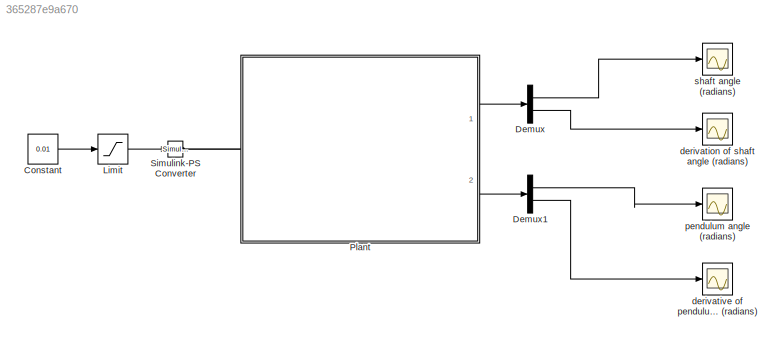
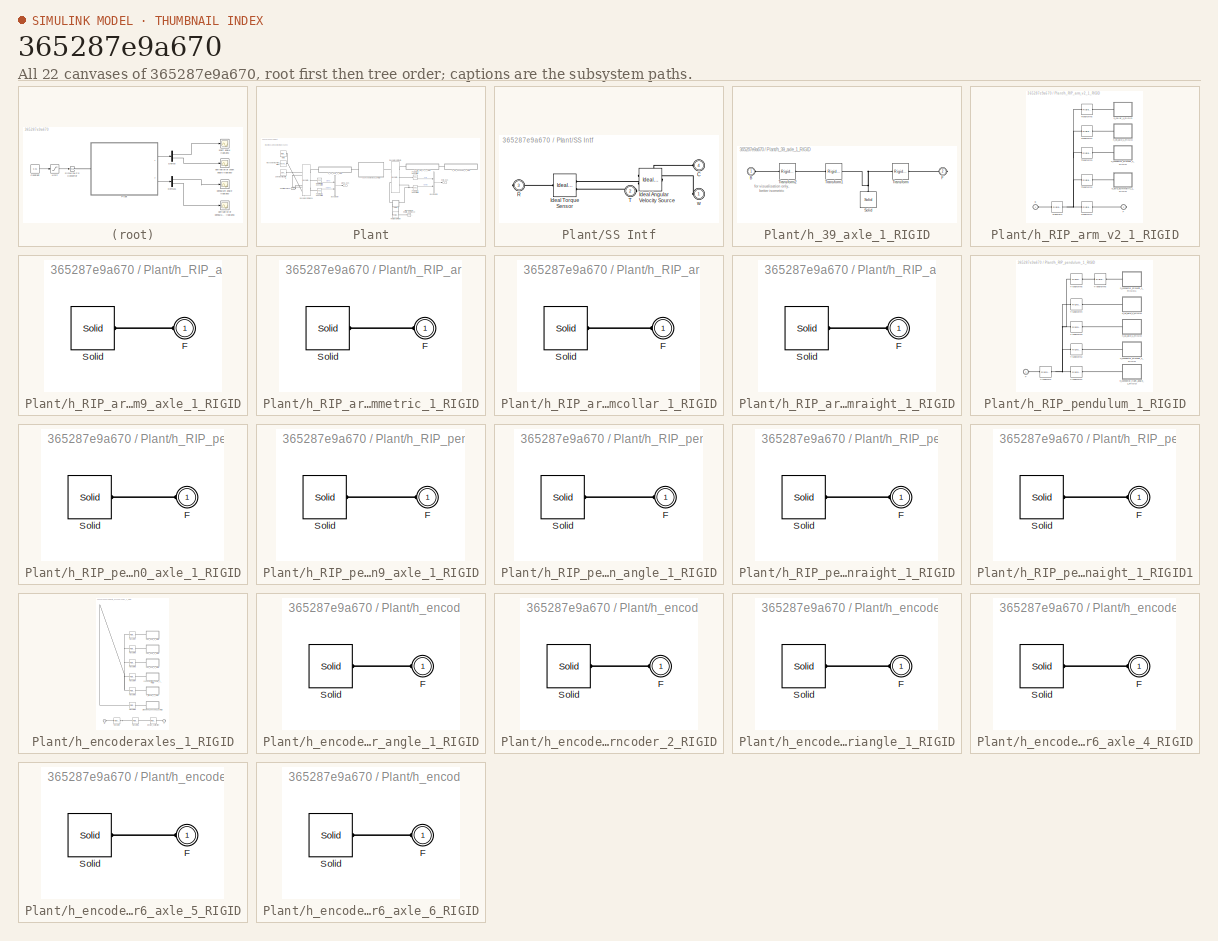
[diagram: thumbnail index - all 22 canvases of the model, root first then tree order]
MODEL slx_365287e9a670
KIND model
CONFIG AbsTol = auto
CONFIG EnableMultiTasking = off
CONFIG FixedStep = auto
CONFIG MaxStep = auto
CONFIG MinStep = auto
CONFIG RelTol = 1e-3
CONFIG SampleTimeConstraint = Unconstrained
CONFIG Solver = VariableStepAuto
CONFIG SolverName = VariableStepAuto
CONFIG StartTime = 0.0
CONFIG StopTime = 10.0
BLOCK [Constant] Constant
  Value = 0.01
BLOCK [Demux] Demux
  Outputs = 2
  Ports = [1, 2]
BLOCK [Demux] Demux1
  Outputs = 2
  Ports = [1, 2]
BLOCK [Saturate] Limit
  LowerLimit = -0.1e3
  UpperLimit = 0.1e3
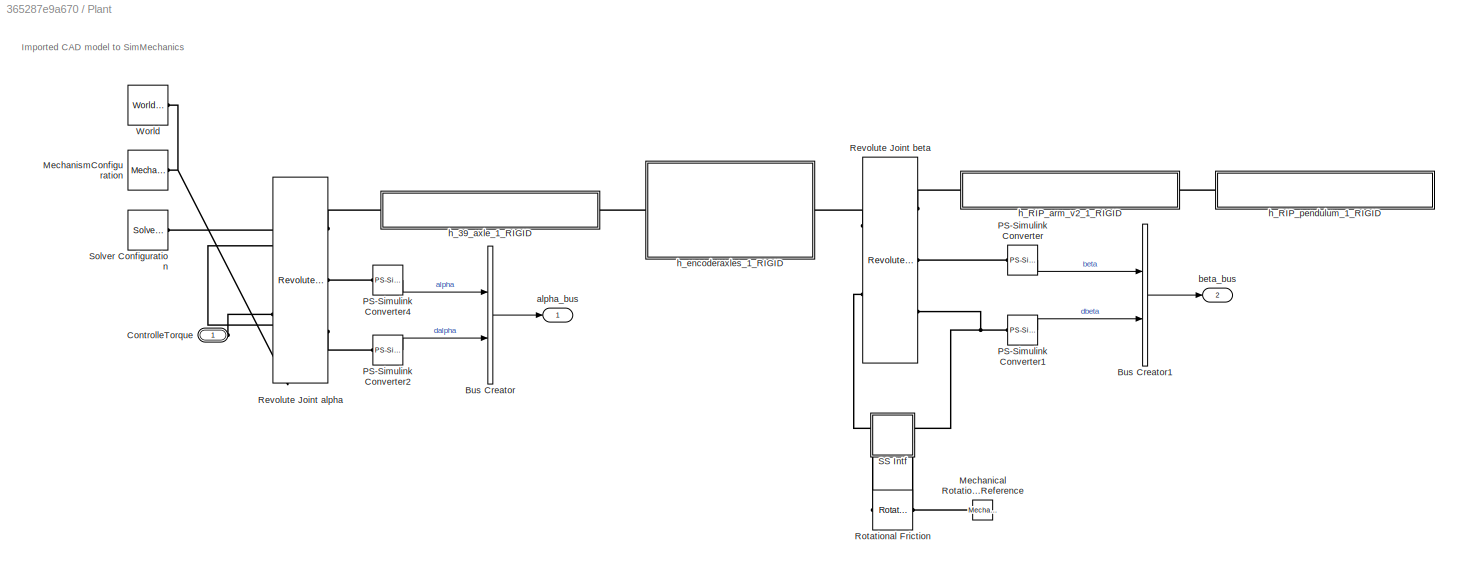
BLOCK [SubSystem] Plant
  Ports = [0, 2, 0, 0, 0, 1]
  RequestExecContextInheritance = off
BLOCK [BusCreator] Plant/Bus Creator
  DisplayOption = bar
  InheritFromInputs = on
  Inputs = 2
  Ports = [2, 1]
BLOCK [BusCreator] Plant/Bus Creator1
  DisplayOption = bar
  InheritFromInputs = on
  Inputs = 2
  Ports = [2, 1]
BLOCK [PMIOPort] Plant/ControlleTorque
  Side = Left
BLOCK [Reference] Plant/Mechanical Rotational Reference  REF=fl_lib/Mechanical/Rotational Elements/Mechanical
Rotational Reference
  Ports = [0, 0, 0, 0, 0, 1]
  SourceBlock = fl_lib/Mechanical/Rotational Elements/Mechanical\nRotational Reference
  SourceProductBaseCode = SS
  SourceType = Mechanical\nRotational Reference
BLOCK [Reference] Plant/MechanismConfiguration  REF=sm_lib/Utilities/Mechanism
Configuration
  Ports = [0, 0, 0, 0, 0, 0, 1]
  SourceBlock = sm_lib/Utilities/Mechanism\nConfiguration
  SourceProductBaseCode = MS
  SourceType = Mechanism\nConfiguration
BLOCK [Reference] Plant/PS-Simulink Converter  REF=nesl_utility/PS-Simulink
Converter
  Ports = [0, 1, 0, 0, 0, 1]
  SourceBlock = nesl_utility/PS-Simulink\nConverter
  SourceProductBaseCode = SS
  SourceType = PS-Simulink\nConverter
BLOCK [Reference] Plant/PS-Simulink Converter1  REF=nesl_utility/PS-Simulink
Converter
  Ports = [0, 1, 0, 0, 0, 1]
  SourceBlock = nesl_utility/PS-Simulink\nConverter
  SourceProductBaseCode = SS
  SourceType = PS-Simulink\nConverter
BLOCK [Reference] Plant/PS-Simulink Converter2  REF=nesl_utility/PS-Simulink
Converter
  Ports = [0, 1, 0, 0, 0, 1]
  SourceBlock = nesl_utility/PS-Simulink\nConverter
  SourceProductBaseCode = SS
  SourceType = PS-Simulink\nConverter
BLOCK [Reference] Plant/PS-Simulink Converter4  REF=nesl_utility/PS-Simulink
Converter
  Ports = [0, 1, 0, 0, 0, 1]
  SourceBlock = nesl_utility/PS-Simulink\nConverter
  SourceProductBaseCode = SS
  SourceType = PS-Simulink\nConverter
BLOCK [Reference] Plant/Revolute Joint alpha  REF=sm_lib/Joints/Revolute Joint
  Ports = [0, 0, 0, 0, 0, 2, 3]
  SourceBlock = sm_lib/Joints/Revolute Joint
  SourceProductBaseCode = MS
  SourceType = Revolute Joint
BLOCK [Reference] Plant/Revolute Joint beta  REF=sm_lib/Joints/Revolute Joint
  Ports = [0, 0, 0, 0, 0, 2, 3]
  SourceBlock = sm_lib/Joints/Revolute Joint
  SourceProductBaseCode = MS
  SourceType = Revolute Joint
BLOCK [Reference] Plant/Rotational Friction  REF=fl_lib/Mechanical/Rotational Elements/Rotational Friction
  Ports = [0, 0, 0, 0, 0, 1, 1]
  SourceBlock = fl_lib/Mechanical/Rotational Elements/Rotational Friction
  SourceProductBaseCode = SS
  SourceType = Rotational Friction
BLOCK [SubSystem] Plant/SS Intf
  Ports = [0, 0, 0, 0, 0, 2, 2]
  RequestExecContextInheritance = off
BLOCK [PMIOPort] Plant/SS Intf/C
  Port = 4
  Side = Left
BLOCK [Reference] Plant/SS Intf/Ideal Angular Velocity Source  REF=fl_lib/Mechanical/Mechanical Sources/Ideal Angular
Velocity Source
  Ports = [0, 0, 0, 0, 0, 1, 2]
  SourceBlock = fl_lib/Mechanical/Mechanical Sources/Ideal Angular\nVelocity Source
  SourceProductBaseCode = SS
  SourceType = Ideal Angular\nVelocity Source
BLOCK [Reference] Plant/SS Intf/Ideal Torque Sensor  REF=fl_lib/Mechanical/Mechanical Sensors/Ideal Torque Sensor
  Ports = [0, 0, 0, 0, 0, 1, 2]
  SourceBlock = fl_lib/Mechanical/Mechanical Sensors/Ideal Torque Sensor
  SourceProductBaseCode = SS
  SourceType = Ideal Torque Sensor
BLOCK [PMIOPort] Plant/SS Intf/R
  Port = 3
  Side = Right
BLOCK [PMIOPort] Plant/SS Intf/T
  Port = 2
  Side = Right
BLOCK [PMIOPort] Plant/SS Intf/w
  Side = Left
BLOCK [Reference] Plant/Solver Configuration  REF=nesl_utility/Solver
Configuration
  Ports = [0, 0, 0, 0, 0, 0, 1]
  SourceBlock = nesl_utility/Solver\nConfiguration
  SourceProductBaseCode = SS
  SourceType = Solver\nConfiguration
BLOCK [Reference] Plant/World  REF=sm_lib/Frames and
Transforms/World Frame
  Ports = [0, 0, 0, 0, 0, 0, 1]
  SourceBlock = sm_lib/Frames and\nTransforms/World Frame
  SourceProductBaseCode = MS
  SourceType = World Frame
BLOCK [Outport] Plant/alpha_bus
BLOCK [Outport] Plant/beta_bus
  Port = 2
BLOCK [SubSystem] Plant/h_39_axle_1_RIGID
  Ports = [0, 0, 0, 0, 0, 1, 1]
  RequestExecContextInheritance = off
BLOCK [PMIOPort] Plant/h_39_axle_1_RIGID/B
  Side = Left
BLOCK [PMIOPort] Plant/h_39_axle_1_RIGID/F
  Port = 2
  Side = Right
BLOCK [Reference] Plant/h_39_axle_1_RIGID/Solid  REF=sm_lib/Body Elements/Solid
  Ports = [0, 0, 0, 0, 0, 0, 1]
  SourceBlock = sm_lib/Body Elements/Solid
  SourceProductBaseCode = MS
  SourceType = File Solid
BLOCK [Reference] Plant/h_39_axle_1_RIGID/Transform  REF=sm_lib/Frames and
Transforms/Rigid
Transform
  Ports = [0, 0, 0, 0, 0, 1, 1]
  SourceBlock = sm_lib/Frames and\nTransforms/Rigid\nTransform
  SourceProductBaseCode = MS
  SourceType = Rigid\nTransform
BLOCK [Reference] Plant/h_39_axle_1_RIGID/Transform1  REF=sm_lib/Frames and
Transforms/Rigid
Transform
  Ports = [0, 0, 0, 0, 0, 1, 1]
  SourceBlock = sm_lib/Frames and\nTransforms/Rigid\nTransform
  SourceProductBaseCode = MS
  SourceType = Rigid\nTransform
BLOCK [Reference] Plant/h_39_axle_1_RIGID/Transform2  REF=sm_lib/Frames and
Transforms/Rigid
Transform
  Ports = [0, 0, 0, 0, 0, 1, 1]
  SourceBlock = sm_lib/Frames and\nTransforms/Rigid\nTransform
  SourceProductBaseCode = MS
  SourceType = Rigid\nTransform
BLOCK [SubSystem] Plant/h_RIP_arm_v2_1_RIGID
  Ports = [0, 0, 0, 0, 0, 1, 1]
  RequestExecContextInheritance = off
BLOCK [PMIOPort] Plant/h_RIP_arm_v2_1_RIGID/B
  Side = Left
BLOCK [PMIOPort] Plant/h_RIP_arm_v2_1_RIGID/F
  Port = 2
  Side = Right
BLOCK [Reference] Plant/h_RIP_arm_v2_1_RIGID/Transform  REF=sm_lib/Frames and
Transforms/Rigid
Transform
  Ports = [0, 0, 0, 0, 0, 1, 1]
  SourceBlock = sm_lib/Frames and\nTransforms/Rigid\nTransform
  SourceProductBaseCode = MS
  SourceType = Rigid\nTransform
BLOCK [Reference] Plant/h_RIP_arm_v2_1_RIGID/Transform1  REF=sm_lib/Frames and
Transforms/Rigid
Transform
  Ports = [0, 0, 0, 0, 0, 1, 1]
  SourceBlock = sm_lib/Frames and\nTransforms/Rigid\nTransform
  SourceProductBaseCode = MS
  SourceType = Rigid\nTransform
BLOCK [Reference] Plant/h_RIP_arm_v2_1_RIGID/Transform2  REF=sm_lib/Frames and
Transforms/Rigid
Transform
  Ports = [0, 0, 0, 0, 0, 1, 1]
  SourceBlock = sm_lib/Frames and\nTransforms/Rigid\nTransform
  SourceProductBaseCode = MS
  SourceType = Rigid\nTransform
BLOCK [Reference] Plant/h_RIP_arm_v2_1_RIGID/Transform3  REF=sm_lib/Frames and
Transforms/Rigid
Transform
  Ports = [0, 0, 0, 0, 0, 1, 1]
  SourceBlock = sm_lib/Frames and\nTransforms/Rigid\nTransform
  SourceProductBaseCode = MS
  SourceType = Rigid\nTransform
BLOCK [Reference] Plant/h_RIP_arm_v2_1_RIGID/Transform4  REF=sm_lib/Frames and
Transforms/Rigid
Transform
  Ports = [0, 0, 0, 0, 0, 1, 1]
  SourceBlock = sm_lib/Frames and\nTransforms/Rigid\nTransform
  SourceProductBaseCode = MS
  SourceType = Rigid\nTransform
BLOCK [Reference] Plant/h_RIP_arm_v2_1_RIGID/Transform5  REF=sm_lib/Frames and
Transforms/Rigid
Transform
  Ports = [0, 0, 0, 0, 0, 1, 1]
  SourceBlock = sm_lib/Frames and\nTransforms/Rigid\nTransform
  SourceProductBaseCode = MS
  SourceType = Rigid\nTransform
BLOCK [SubSystem] Plant/h_RIP_arm_v2_1_RIGID/h_39_axle_1_RIGID
  Ports = [0, 0, 0, 0, 0, 1]
  RequestExecContextInheritance = off
BLOCK [PMIOPort] Plant/h_RIP_arm_v2_1_RIGID/h_39_axle_1_RIGID/F
  Side = Left
BLOCK [Reference] Plant/h_RIP_arm_v2_1_RIGID/h_39_axle_1_RIGID/Solid  REF=sm_lib/Body Elements/Solid
  Ports = [0, 0, 0, 0, 0, 0, 1]
  SourceBlock = sm_lib/Body Elements/Solid
  SourceProductBaseCode = MS
  SourceType = File Solid
BLOCK [SubSystem] Plant/h_RIP_arm_v2_1_RIGID/h_axle_asymmetric_1_RIGID
  Ports = [0, 0, 0, 0, 0, 1]
  RequestExecContextInheritance = off
BLOCK [PMIOPort] Plant/h_RIP_arm_v2_1_RIGID/h_axle_asymmetric_1_RIGID/F
  Side = Left
BLOCK [Reference] Plant/h_RIP_arm_v2_1_RIGID/h_axle_asymmetric_1_RIGID/Solid  REF=sm_lib/Body Elements/Solid
  Ports = [0, 0, 0, 0, 0, 0, 1]
  SourceBlock = sm_lib/Body Elements/Solid
  SourceProductBaseCode = MS
  SourceType = File Solid
BLOCK [SubSystem] Plant/h_RIP_arm_v2_1_RIGID/h_collar_1_RIGID
  Ports = [0, 0, 0, 0, 0, 1]
  RequestExecContextInheritance = off
BLOCK [PMIOPort] Plant/h_RIP_arm_v2_1_RIGID/h_collar_1_RIGID/F
  Side = Left
BLOCK [Reference] Plant/h_RIP_arm_v2_1_RIGID/h_collar_1_RIGID/Solid  REF=sm_lib/Body Elements/Solid
  Ports = [0, 0, 0, 0, 0, 0, 1]
  SourceBlock = sm_lib/Body Elements/Solid
  SourceProductBaseCode = MS
  SourceType = File Solid
BLOCK [SubSystem] Plant/h_RIP_arm_v2_1_RIGID/h_connector_straight_1_RIGID
  Ports = [0, 0, 0, 0, 0, 1]
  RequestExecContextInheritance = off
BLOCK [PMIOPort] Plant/h_RIP_arm_v2_1_RIGID/h_connector_straight_1_RIGID/F
  Side = Left
BLOCK [Reference] Plant/h_RIP_arm_v2_1_RIGID/h_connector_straight_1_RIGID/Solid  REF=sm_lib/Body Elements/Solid
  Ports = [0, 0, 0, 0, 0, 0, 1]
  SourceBlock = sm_lib/Body Elements/Solid
  SourceProductBaseCode = MS
  SourceType = File Solid
BLOCK [SubSystem] Plant/h_RIP_pendulum_1_RIGID
  Ports = [0, 0, 0, 0, 0, 1]
  RequestExecContextInheritance = off
BLOCK [PMIOPort] Plant/h_RIP_pendulum_1_RIGID/F
  Side = Left
BLOCK [Reference] Plant/h_RIP_pendulum_1_RIGID/Transform  REF=sm_lib/Frames and
Transforms/Rigid
Transform
  Ports = [0, 0, 0, 0, 0, 1, 1]
  SourceBlock = sm_lib/Frames and\nTransforms/Rigid\nTransform
  SourceProductBaseCode = MS
  SourceType = Rigid\nTransform
BLOCK [Reference] Plant/h_RIP_pendulum_1_RIGID/Transform1  REF=sm_lib/Frames and
Transforms/Rigid
Transform
  Ports = [0, 0, 0, 0, 0, 1, 1]
  SourceBlock = sm_lib/Frames and\nTransforms/Rigid\nTransform
  SourceProductBaseCode = MS
  SourceType = Rigid\nTransform
BLOCK [Reference] Plant/h_RIP_pendulum_1_RIGID/Transform2  REF=sm_lib/Frames and
Transforms/Rigid
Transform
  Ports = [0, 0, 0, 0, 0, 1, 1]
  SourceBlock = sm_lib/Frames and\nTransforms/Rigid\nTransform
  SourceProductBaseCode = MS
  SourceType = Rigid\nTransform
BLOCK [Reference] Plant/h_RIP_pendulum_1_RIGID/Transform3  REF=sm_lib/Frames and
Transforms/Rigid
Transform
  Ports = [0, 0, 0, 0, 0, 1, 1]
  SourceBlock = sm_lib/Frames and\nTransforms/Rigid\nTransform
  SourceProductBaseCode = MS
  SourceType = Rigid\nTransform
BLOCK [Reference] Plant/h_RIP_pendulum_1_RIGID/Transform4  REF=sm_lib/Frames and
Transforms/Rigid
Transform
  Ports = [0, 0, 0, 0, 0, 1, 1]
  SourceBlock = sm_lib/Frames and\nTransforms/Rigid\nTransform
  SourceProductBaseCode = MS
  SourceType = Rigid\nTransform
BLOCK [Reference] Plant/h_RIP_pendulum_1_RIGID/Transform5  REF=sm_lib/Frames and
Transforms/Rigid
Transform
  Ports = [0, 0, 0, 0, 0, 1, 1]
  SourceBlock = sm_lib/Frames and\nTransforms/Rigid\nTransform
  SourceProductBaseCode = MS
  SourceType = Rigid\nTransform
BLOCK [Reference] Plant/h_RIP_pendulum_1_RIGID/Transform6  REF=sm_lib/Frames and
Transforms/Rigid
Transform
  Ports = [0, 0, 0, 0, 0, 1, 1]
  SourceBlock = sm_lib/Frames and\nTransforms/Rigid\nTransform
  SourceProductBaseCode = MS
  SourceType = Rigid\nTransform
BLOCK [SubSystem] Plant/h_RIP_pendulum_1_RIGID/h_10_axle_1_RIGID
  Ports = [0, 0, 0, 0, 0, 1]
  RequestExecContextInheritance = off
BLOCK [PMIOPort] Plant/h_RIP_pendulum_1_RIGID/h_10_axle_1_RIGID/F
  Side = Left
BLOCK [Reference] Plant/h_RIP_pendulum_1_RIGID/h_10_axle_1_RIGID/Solid  REF=sm_lib/Body Elements/Solid
  Ports = [0, 0, 0, 0, 0, 0, 1]
  SourceBlock = sm_lib/Body Elements/Solid
  SourceProductBaseCode = MS
  SourceType = File Solid
BLOCK [SubSystem] Plant/h_RIP_pendulum_1_RIGID/h_79_axle_1_RIGID
  Ports = [0, 0, 0, 0, 0, 1]
  RequestExecContextInheritance = off
BLOCK [PMIOPort] Plant/h_RIP_pendulum_1_RIGID/h_79_axle_1_RIGID/F
  Side = Left
BLOCK [Reference] Plant/h_RIP_pendulum_1_RIGID/h_79_axle_1_RIGID/Solid  REF=sm_lib/Body Elements/Solid
  Ports = [0, 0, 0, 0, 0, 0, 1]
  SourceBlock = sm_lib/Body Elements/Solid
  SourceProductBaseCode = MS
  SourceType = File Solid
BLOCK [SubSystem] Plant/h_RIP_pendulum_1_RIGID/h_connector_right_angle_1_RIGID
  Ports = [0, 0, 0, 0, 0, 1]
  RequestExecContextInheritance = off
BLOCK [PMIOPort] Plant/h_RIP_pendulum_1_RIGID/h_connector_right_angle_1_RIGID/F
  Side = Left
BLOCK [Reference] Plant/h_RIP_pendulum_1_RIGID/h_connector_right_angle_1_RIGID/Solid  REF=sm_lib/Body Elements/Solid
  Ports = [0, 0, 0, 0, 0, 0, 1]
  SourceBlock = sm_lib/Body Elements/Solid
  SourceProductBaseCode = MS
  SourceType = File Solid
BLOCK [SubSystem] Plant/h_RIP_pendulum_1_RIGID/h_connector_straight_1_RIGID
  Ports = [0, 0, 0, 0, 0, 1]
  RequestExecContextInheritance = off
BLOCK [PMIOPort] Plant/h_RIP_pendulum_1_RIGID/h_connector_straight_1_RIGID/F
  Side = Left
BLOCK [Reference] Plant/h_RIP_pendulum_1_RIGID/h_connector_straight_1_RIGID/Solid  REF=sm_lib/Body Elements/Solid
  Ports = [0, 0, 0, 0, 0, 0, 1]
  SourceBlock = sm_lib/Body Elements/Solid
  SourceProductBaseCode = MS
  SourceType = File Solid
BLOCK [SubSystem] Plant/h_RIP_pendulum_1_RIGID/h_connector_straight_1_RIGID1
  Ports = [0, 0, 0, 0, 0, 1]
  RequestExecContextInheritance = off
BLOCK [PMIOPort] Plant/h_RIP_pendulum_1_RIGID/h_connector_straight_1_RIGID1/F
  Side = Left
BLOCK [Reference] Plant/h_RIP_pendulum_1_RIGID/h_connector_straight_1_RIGID1/Solid  REF=sm_lib/Body Elements/Solid
  Ports = [0, 0, 0, 0, 0, 0, 1]
  SourceBlock = sm_lib/Body Elements/Solid
  SourceProductBaseCode = MS
  SourceType = File Solid
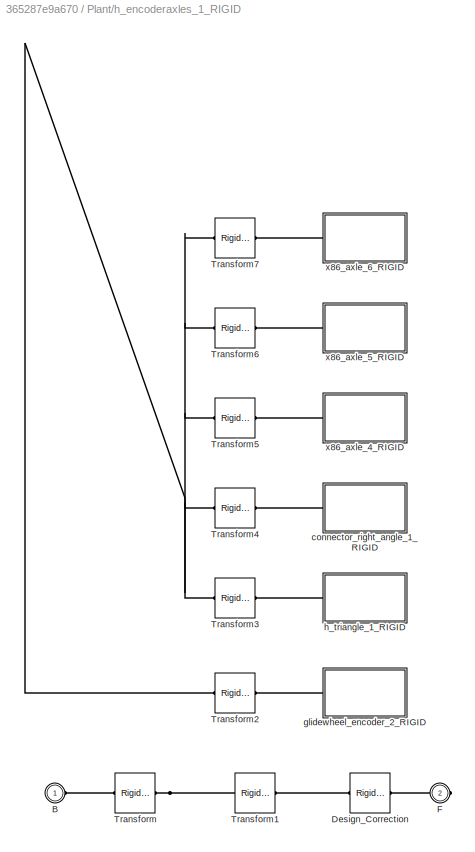
BLOCK [SubSystem] Plant/h_encoderaxles_1_RIGID
  Ports = [0, 0, 0, 0, 0, 1, 1]
  RequestExecContextInheritance = off
BLOCK [PMIOPort] Plant/h_encoderaxles_1_RIGID/B
  Side = Left
BLOCK [Reference] Plant/h_encoderaxles_1_RIGID/Design_Correction  REF=sm_lib/Frames and
Transforms/Rigid
Transform
  Ports = [0, 0, 0, 0, 0, 1, 1]
  SourceBlock = sm_lib/Frames and\nTransforms/Rigid\nTransform
  SourceProductBaseCode = MS
  SourceType = Rigid\nTransform
BLOCK [PMIOPort] Plant/h_encoderaxles_1_RIGID/F
  Port = 2
  Side = Right
BLOCK [Reference] Plant/h_encoderaxles_1_RIGID/Transform  REF=sm_lib/Frames and
Transforms/Rigid
Transform
  Ports = [0, 0, 0, 0, 0, 1, 1]
  SourceBlock = sm_lib/Frames and\nTransforms/Rigid\nTransform
  SourceProductBaseCode = MS
  SourceType = Rigid\nTransform
BLOCK [Reference] Plant/h_encoderaxles_1_RIGID/Transform1  REF=sm_lib/Frames and
Transforms/Rigid
Transform
  Ports = [0, 0, 0, 0, 0, 1, 1]
  SourceBlock = sm_lib/Frames and\nTransforms/Rigid\nTransform
  SourceProductBaseCode = MS
  SourceType = Rigid\nTransform
BLOCK [Reference] Plant/h_encoderaxles_1_RIGID/Transform2  REF=sm_lib/Frames and
Transforms/Rigid
Transform
  Ports = [0, 0, 0, 0, 0, 1, 1]
  SourceBlock = sm_lib/Frames and\nTransforms/Rigid\nTransform
  SourceProductBaseCode = MS
  SourceType = Rigid\nTransform
BLOCK [Reference] Plant/h_encoderaxles_1_RIGID/Transform3  REF=sm_lib/Frames and
Transforms/Rigid
Transform
  Ports = [0, 0, 0, 0, 0, 1, 1]
  SourceBlock = sm_lib/Frames and\nTransforms/Rigid\nTransform
  SourceProductBaseCode = MS
  SourceType = Rigid\nTransform
BLOCK [Reference] Plant/h_encoderaxles_1_RIGID/Transform4  REF=sm_lib/Frames and
Transforms/Rigid
Transform
  Ports = [0, 0, 0, 0, 0, 1, 1]
  SourceBlock = sm_lib/Frames and\nTransforms/Rigid\nTransform
  SourceProductBaseCode = MS
  SourceType = Rigid\nTransform
BLOCK [Reference] Plant/h_encoderaxles_1_RIGID/Transform5  REF=sm_lib/Frames and
Transforms/Rigid
Transform
  Ports = [0, 0, 0, 0, 0, 1, 1]
  SourceBlock = sm_lib/Frames and\nTransforms/Rigid\nTransform
  SourceProductBaseCode = MS
  SourceType = Rigid\nTransform
BLOCK [Reference] Plant/h_encoderaxles_1_RIGID/Transform6  REF=sm_lib/Frames and
Transforms/Rigid
Transform
  Ports = [0, 0, 0, 0, 0, 1, 1]
  SourceBlock = sm_lib/Frames and\nTransforms/Rigid\nTransform
  SourceProductBaseCode = MS
  SourceType = Rigid\nTransform
BLOCK [Reference] Plant/h_encoderaxles_1_RIGID/Transform7  REF=sm_lib/Frames and
Transforms/Rigid
Transform
  Ports = [0, 0, 0, 0, 0, 1, 1]
  SourceBlock = sm_lib/Frames and\nTransforms/Rigid\nTransform
  SourceProductBaseCode = MS
  SourceType = Rigid\nTransform
BLOCK [SubSystem] Plant/h_encoderaxles_1_RIGID/connector_right_angle_1_RIGID
  Ports = [0, 0, 0, 0, 0, 1]
  RequestExecContextInheritance = off
BLOCK [PMIOPort] Plant/h_encoderaxles_1_RIGID/connector_right_angle_1_RIGID/F
  Side = Left
BLOCK [Reference] Plant/h_encoderaxles_1_RIGID/connector_right_angle_1_RIGID/Solid  REF=sm_lib/Body Elements/Solid
  Ports = [0, 0, 0, 0, 0, 0, 1]
  SourceBlock = sm_lib/Body Elements/Solid
  SourceProductBaseCode = MS
  SourceType = File Solid
BLOCK [SubSystem] Plant/h_encoderaxles_1_RIGID/glidewheel_encoder_2_RIGID
  Ports = [0, 0, 0, 0, 0, 1]
  RequestExecContextInheritance = off
BLOCK [PMIOPort] Plant/h_encoderaxles_1_RIGID/glidewheel_encoder_2_RIGID/F
  Side = Left
BLOCK [Reference] Plant/h_encoderaxles_1_RIGID/glidewheel_encoder_2_RIGID/Solid  REF=sm_lib/Body Elements/Solid
  Ports = [0, 0, 0, 0, 0, 0, 1]
  SourceBlock = sm_lib/Body Elements/Solid
  SourceProductBaseCode = MS
  SourceType = File Solid
BLOCK [SubSystem] Plant/h_encoderaxles_1_RIGID/h_triangle_1_RIGID
  Ports = [0, 0, 0, 0, 0, 1]
  RequestExecContextInheritance = off
BLOCK [PMIOPort] Plant/h_encoderaxles_1_RIGID/h_triangle_1_RIGID/F
  Side = Left
BLOCK [Reference] Plant/h_encoderaxles_1_RIGID/h_triangle_1_RIGID/Solid  REF=sm_lib/Body Elements/Solid
  Ports = [0, 0, 0, 0, 0, 0, 1]
  SourceBlock = sm_lib/Body Elements/Solid
  SourceProductBaseCode = MS
  SourceType = File Solid
BLOCK [SubSystem] Plant/h_encoderaxles_1_RIGID/x86_axle_4_RIGID
  Ports = [0, 0, 0, 0, 0, 1]
  RequestExecContextInheritance = off
BLOCK [PMIOPort] Plant/h_encoderaxles_1_RIGID/x86_axle_4_RIGID/F
  Side = Left
BLOCK [Reference] Plant/h_encoderaxles_1_RIGID/x86_axle_4_RIGID/Solid  REF=sm_lib/Body Elements/Solid
  Ports = [0, 0, 0, 0, 0, 0, 1]
  SourceBlock = sm_lib/Body Elements/Solid
  SourceProductBaseCode = MS
  SourceType = File Solid
BLOCK [SubSystem] Plant/h_encoderaxles_1_RIGID/x86_axle_5_RIGID
  Ports = [0, 0, 0, 0, 0, 1]
  RequestExecContextInheritance = off
BLOCK [PMIOPort] Plant/h_encoderaxles_1_RIGID/x86_axle_5_RIGID/F
  Side = Left
BLOCK [Reference] Plant/h_encoderaxles_1_RIGID/x86_axle_5_RIGID/Solid  REF=sm_lib/Body Elements/Solid
  Ports = [0, 0, 0, 0, 0, 0, 1]
  SourceBlock = sm_lib/Body Elements/Solid
  SourceProductBaseCode = MS
  SourceType = File Solid
BLOCK [SubSystem] Plant/h_encoderaxles_1_RIGID/x86_axle_6_RIGID
  Ports = [0, 0, 0, 0, 0, 1]
  RequestExecContextInheritance = off
BLOCK [PMIOPort] Plant/h_encoderaxles_1_RIGID/x86_axle_6_RIGID/F
  Side = Left
BLOCK [Reference] Plant/h_encoderaxles_1_RIGID/x86_axle_6_RIGID/Solid  REF=sm_lib/Body Elements/Solid
  Ports = [0, 0, 0, 0, 0, 0, 1]
  SourceBlock = sm_lib/Body Elements/Solid
  SourceProductBaseCode = MS
  SourceType = File Solid
BLOCK [Reference] Simulink-PS Converter  REF=nesl_utility/Simulink-PS
Converter
  Ports = [1, 0, 0, 0, 0, 0, 1]
  SourceBlock = nesl_utility/Simulink-PS\nConverter
  SourceProductBaseCode = SS
  SourceType = Simulink-PS\nConverter
BLOCK [Scope] derivation of shaft angle (radians)
  Floating = off
  NumInputPorts = 1
  Ports = [1]
  ScopeSpecificationString = Simulink.scopes.TimeScopeBlockCfg('CurrentConfiguration', extmgr.ConfigurationSet(extmgr.Configuration('Core','General UI',true),extmgr.Configuration('Core','Source UI',true),extmgr.Configuration('Sources','WiredSimulink',true,'DataLoggingVariableName','ScopeData2'),extmgr.Configuration('Visuals','Time Domain',true,'SerializedDisplays',{struct('MinYLimReal','-17.41445','MaxYLimReal','156.73003','Y...<+1376ch>
BLOCK [Scope] derivative of pendulum angle (radians)
  Floating = off
  NumInputPorts = 1
  Ports = [1]
  ScopeSpecificationString = Simulink.scopes.TimeScopeBlockCfg('CurrentConfiguration', extmgr.ConfigurationSet(extmgr.Configuration('Core','General UI',true),extmgr.Configuration('Core','Source UI',true),extmgr.Configuration('Sources','WiredSimulink',true,'DataLoggingVariableName','ScopeData3'),extmgr.Configuration('Visuals','Time Domain',true,'SerializedDisplays',{struct('MinYLimReal','-40.35172','MaxYLimReal','40.31023','YL...<+1400ch>
BLOCK [Scope] pendulum angle (radians)
  Floating = off
  NumInputPorts = 1
  Ports = [1]
  ScopeSpecificationString = Simulink.scopes.TimeScopeBlockCfg('CurrentConfiguration', extmgr.ConfigurationSet(extmgr.Configuration('Core','General UI',true),extmgr.Configuration('Core','Source UI',true),extmgr.Configuration('Sources','WiredSimulink',true,'DataLoggingVariableName','ScopeData1'),extmgr.Configuration('Visuals','Time Domain',true,'SerializedDisplays',{struct('MinYLimReal','2.87763','MaxYLimReal','5.51722','YLabe...<+1365ch>
BLOCK [Scope] shaft angle (radians)
  Floating = off
  NumInputPorts = 1
  Ports = [1]
  ScopeSpecificationString = Simulink.scopes.TimeScopeBlockCfg('CurrentConfiguration', extmgr.ConfigurationSet(extmgr.Configuration('Core','General UI',true),extmgr.Configuration('Core','Source UI',true),extmgr.Configuration('Sources','WiredSimulink',true),extmgr.Configuration('Visuals','Time Domain',true,'SerializedDisplays',{struct('MinYLimReal','-134.80815','MaxYLimReal','1213.27335','YLabelReal','','MinYLimMag',' 0.00000'...<+1374ch>
ANNOTATION Plant: Add friction or any other model influencing forces/torques using Simscape
ANNOTATION Plant: Imported CAD model to SimMechanics
ANNOTATION Plant/h_39_axle_1_RIGID: for visualisation only, better isometric
LINE Constant:1 -> Limit:1
LINE Demux1:1 -> pendulum angle (radians):1
LINE Demux1:2 -> derivative of pendulum angle (radians):1
LINE Demux:1 -> shaft angle (radians):1
LINE Demux:2 -> derivation of shaft angle (radians):1
LINE Limit:1 -> Simulink-PS Converter:1
LINE Plant/Bus Creator1:1 -> Plant/beta_bus:1
LINE Plant/Bus Creator:1 -> Plant/alpha_bus:1
LINE Plant/PS-Simulink Converter1:1 -> Plant/Bus Creator1:2
LINE Plant/PS-Simulink Converter2:1 -> Plant/Bus Creator:2
LINE Plant/PS-Simulink Converter4:1 -> Plant/Bus Creator:1
LINE Plant/PS-Simulink Converter:1 -> Plant/Bus Creator1:1
LINE Plant:1 -> Demux:1
LINE Plant:2 -> Demux1:1
PLINE Plant/ControlleTorque:RConn1 -- Plant/Revolute Joint alpha:LConn2
PNET net1: Plant/Mechanical Rotational Reference:LConn1 -- Plant/Rotational Friction:RConn1 -- Plant/SS Intf:LConn2
PNET net2: Plant/MechanismConfiguration:RConn1 -- Plant/Revolute Joint alpha:LConn1 -- Plant/Solver Configuration:RConn1 -- Plant/World:RConn1
PNET net3: Plant/PS-Simulink Converter1:LConn1 -- Plant/Revolute Joint beta:RConn3 -- Plant/SS Intf:LConn1
PLINE Plant/PS-Simulink Converter2:LConn1 -- Plant/Revolute Joint alpha:RConn3
PLINE Plant/PS-Simulink Converter4:LConn1 -- Plant/Revolute Joint alpha:RConn2
PLINE Plant/PS-Simulink Converter:LConn1 -- Plant/Revolute Joint beta:RConn2
PLINE Plant/Revolute Joint alpha:RConn1 -- Plant/h_39_axle_1_RIGID:LConn1
PLINE Plant/Revolute Joint beta:LConn1 -- Plant/h_encoderaxles_1_RIGID:RConn1
PLINE Plant/Revolute Joint beta:LConn2 -- Plant/SS Intf:RConn1
PLINE Plant/Revolute Joint beta:RConn1 -- Plant/h_RIP_arm_v2_1_RIGID:LConn1
PLINE Plant/Rotational Friction:LConn1 -- Plant/SS Intf:RConn2
PLINE Plant/SS Intf/C:RConn1 -- Plant/SS Intf/Ideal Angular Velocity Source:RConn2
PLINE Plant/SS Intf/Ideal Angular Velocity Source:LConn1 -- Plant/SS Intf/Ideal Torque Sensor:RConn1
PLINE Plant/SS Intf/Ideal Angular Velocity Source:RConn1 -- Plant/SS Intf/w:RConn1
PLINE Plant/SS Intf/Ideal Torque Sensor:LConn1 -- Plant/SS Intf/R:RConn1
PLINE Plant/SS Intf/Ideal Torque Sensor:RConn2 -- Plant/SS Intf/T:RConn1
PLINE Plant/h_39_axle_1_RIGID/B:RConn1 -- Plant/h_39_axle_1_RIGID/Transform2:LConn1
PLINE Plant/h_39_axle_1_RIGID/F:RConn1 -- Plant/h_39_axle_1_RIGID/Transform:RConn1
PNET net4: Plant/h_39_axle_1_RIGID/Solid:RConn1 -- Plant/h_39_axle_1_RIGID/Transform1:RConn1 -- Plant/h_39_axle_1_RIGID/Transform:LConn1
PLINE Plant/h_39_axle_1_RIGID/Transform1:LConn1 -- Plant/h_39_axle_1_RIGID/Transform2:RConn1
PLINE Plant/h_39_axle_1_RIGID:RConn1 -- Plant/h_encoderaxles_1_RIGID:LConn1
PLINE Plant/h_RIP_arm_v2_1_RIGID/B:RConn1 -- Plant/h_RIP_arm_v2_1_RIGID/Transform:RConn1
PLINE Plant/h_RIP_arm_v2_1_RIGID/F:RConn1 -- Plant/h_RIP_arm_v2_1_RIGID/Transform1:RConn1
PNET net5: Plant/h_RIP_arm_v2_1_RIGID/Transform1:LConn1 -- Plant/h_RIP_arm_v2_1_RIGID/Transform2:LConn1 -- Plant/h_RIP_arm_v2_1_RIGID/Transform3:LConn1 -- Plant/h_RIP_arm_v2_1_RIGID/Transform4:LConn1 -- Plant/h_RIP_arm_v2_1_RIGID/Transform5:LConn1 -- Plant/h_RIP_arm_v2_1_RIGID/Transform:LConn1
PLINE Plant/h_RIP_arm_v2_1_RIGID/Transform2:RConn1 -- Plant/h_RIP_arm_v2_1_RIGID/h_axle_asymmetric_1_RIGID:LConn1
PLINE Plant/h_RIP_arm_v2_1_RIGID/Transform3:RConn1 -- Plant/h_RIP_arm_v2_1_RIGID/h_connector_straight_1_RIGID:LConn1
PLINE Plant/h_RIP_arm_v2_1_RIGID/Transform4:RConn1 -- Plant/h_RIP_arm_v2_1_RIGID/h_39_axle_1_RIGID:LConn1
PLINE Plant/h_RIP_arm_v2_1_RIGID/Transform5:RConn1 -- Plant/h_RIP_arm_v2_1_RIGID/h_collar_1_RIGID:LConn1
PLINE Plant/h_RIP_arm_v2_1_RIGID/h_39_axle_1_RIGID/F:RConn1 -- Plant/h_RIP_arm_v2_1_RIGID/h_39_axle_1_RIGID/Solid:RConn1
PLINE Plant/h_RIP_arm_v2_1_RIGID/h_axle_asymmetric_1_RIGID/F:RConn1 -- Plant/h_RIP_arm_v2_1_RIGID/h_axle_asymmetric_1_RIGID/Solid:RConn1
PLINE Plant/h_RIP_arm_v2_1_RIGID/h_collar_1_RIGID/F:RConn1 -- Plant/h_RIP_arm_v2_1_RIGID/h_collar_1_RIGID/Solid:RConn1
PLINE Plant/h_RIP_arm_v2_1_RIGID/h_connector_straight_1_RIGID/F:RConn1 -- Plant/h_RIP_arm_v2_1_RIGID/h_connector_straight_1_RIGID/Solid:RConn1
PLINE Plant/h_RIP_arm_v2_1_RIGID:RConn1 -- Plant/h_RIP_pendulum_1_RIGID:LConn1
PLINE Plant/h_RIP_pendulum_1_RIGID/F:RConn1 -- Plant/h_RIP_pendulum_1_RIGID/Transform:RConn1
PNET net6: Plant/h_RIP_pendulum_1_RIGID/Transform1:LConn1 -- Plant/h_RIP_pendulum_1_RIGID/Transform2:LConn1 -- Plant/h_RIP_pendulum_1_RIGID/Transform3:LConn1 -- Plant/h_RIP_pendulum_1_RIGID/Transform4:LConn1 -- Plant/h_RIP_pendulum_1_RIGID/Transform5:LConn1 -- Plant/h_RIP_pendulum_1_RIGID/Transform:LConn1
PLINE Plant/h_RIP_pendulum_1_RIGID/Transform1:RConn1 -- Plant/h_RIP_pendulum_1_RIGID/h_connector_right_angle_1_RIGID:LConn1
PLINE Plant/h_RIP_pendulum_1_RIGID/Transform2:RConn1 -- Plant/h_RIP_pendulum_1_RIGID/h_connector_straight_1_RIGID:LConn1
PLINE Plant/h_RIP_pendulum_1_RIGID/Transform3:RConn1 -- Plant/h_RIP_pendulum_1_RIGID/h_10_axle_1_RIGID:LConn1
PLINE Plant/h_RIP_pendulum_1_RIGID/Transform4:RConn1 -- Plant/h_RIP_pendulum_1_RIGID/h_79_axle_1_RIGID:LConn1
PLINE Plant/h_RIP_pendulum_1_RIGID/Transform5:RConn1 -- Plant/h_RIP_pendulum_1_RIGID/Transform6:LConn1
PLINE Plant/h_RIP_pendulum_1_RIGID/Transform6:RConn1 -- Plant/h_RIP_pendulum_1_RIGID/h_connector_straight_1_RIGID1:LConn1
PLINE Plant/h_RIP_pendulum_1_RIGID/h_10_axle_1_RIGID/F:RConn1 -- Plant/h_RIP_pendulum_1_RIGID/h_10_axle_1_RIGID/Solid:RConn1
PLINE Plant/h_RIP_pendulum_1_RIGID/h_79_axle_1_RIGID/F:RConn1 -- Plant/h_RIP_pendulum_1_RIGID/h_79_axle_1_RIGID/Solid:RConn1
PLINE Plant/h_RIP_pendulum_1_RIGID/h_connector_right_angle_1_RIGID/F:RConn1 -- Plant/h_RIP_pendulum_1_RIGID/h_connector_right_angle_1_RIGID/Solid:RConn1
PLINE Plant/h_RIP_pendulum_1_RIGID/h_connector_straight_1_RIGID/F:RConn1 -- Plant/h_RIP_pendulum_1_RIGID/h_connector_straight_1_RIGID/Solid:RConn1
PLINE Plant/h_RIP_pendulum_1_RIGID/h_connector_straight_1_RIGID1/F:RConn1 -- Plant/h_RIP_pendulum_1_RIGID/h_connector_straight_1_RIGID1/Solid:RConn1
PLINE Plant/h_encoderaxles_1_RIGID/B:RConn1 -- Plant/h_encoderaxles_1_RIGID/Transform:RConn1
PLINE Plant/h_encoderaxles_1_RIGID/Design_Correction:LConn1 -- Plant/h_encoderaxles_1_RIGID/Transform1:RConn1
PLINE Plant/h_encoderaxles_1_RIGID/Design_Correction:RConn1 -- Plant/h_encoderaxles_1_RIGID/F:RConn1
PNET net7: Plant/h_encoderaxles_1_RIGID/Transform1:LConn1 -- Plant/h_encoderaxles_1_RIGID/Transform2:LConn1 -- Plant/h_encoderaxles_1_RIGID/Transform3:LConn1 -- Plant/h_encoderaxles_1_RIGID/Transform4:LConn1 -- Plant/h_encoderaxles_1_RIGID/Transform5:LConn1 -- Plant/h_encoderaxles_1_RIGID/Transform6:LConn1 -- Plant/h_encoderaxles_1_RIGID/Transform7:LConn1 -- Plant/h_encoderaxles_1_RIGID/Transform:LConn1
PLINE Plant/h_encoderaxles_1_RIGID/Transform2:RConn1 -- Plant/h_encoderaxles_1_RIGID/glidewheel_encoder_2_RIGID:LConn1
PLINE Plant/h_encoderaxles_1_RIGID/Transform3:RConn1 -- Plant/h_encoderaxles_1_RIGID/h_triangle_1_RIGID:LConn1
PLINE Plant/h_encoderaxles_1_RIGID/Transform4:RConn1 -- Plant/h_encoderaxles_1_RIGID/connector_right_angle_1_RIGID:LConn1
PLINE Plant/h_encoderaxles_1_RIGID/Transform5:RConn1 -- Plant/h_encoderaxles_1_RIGID/x86_axle_4_RIGID:LConn1
PLINE Plant/h_encoderaxles_1_RIGID/Transform6:RConn1 -- Plant/h_encoderaxles_1_RIGID/x86_axle_5_RIGID:LConn1
PLINE Plant/h_encoderaxles_1_RIGID/Transform7:RConn1 -- Plant/h_encoderaxles_1_RIGID/x86_axle_6_RIGID:LConn1
PLINE Plant/h_encoderaxles_1_RIGID/connector_right_angle_1_RIGID/F:RConn1 -- Plant/h_encoderaxles_1_RIGID/connector_right_angle_1_RIGID/Solid:RConn1
PLINE Plant/h_encoderaxles_1_RIGID/glidewheel_encoder_2_RIGID/F:RConn1 -- Plant/h_encoderaxles_1_RIGID/glidewheel_encoder_2_RIGID/Solid:RConn1
PLINE Plant/h_encoderaxles_1_RIGID/h_triangle_1_RIGID/F:RConn1 -- Plant/h_encoderaxles_1_RIGID/h_triangle_1_RIGID/Solid:RConn1
PLINE Plant/h_encoderaxles_1_RIGID/x86_axle_4_RIGID/F:RConn1 -- Plant/h_encoderaxles_1_RIGID/x86_axle_4_RIGID/Solid:RConn1
PLINE Plant/h_encoderaxles_1_RIGID/x86_axle_5_RIGID/F:RConn1 -- Plant/h_encoderaxles_1_RIGID/x86_axle_5_RIGID/Solid:RConn1
PLINE Plant/h_encoderaxles_1_RIGID/x86_axle_6_RIGID/F:RConn1 -- Plant/h_encoderaxles_1_RIGID/x86_axle_6_RIGID/Solid:RConn1
PLINE Plant:LConn1 -- Simulink-PS Converter:RConn1
note: PNET lines group multi-terminal physical nets as a canonical sorted terminal list (undirected conserving connections); 2-terminal nets keep the pairwise PLINE form
